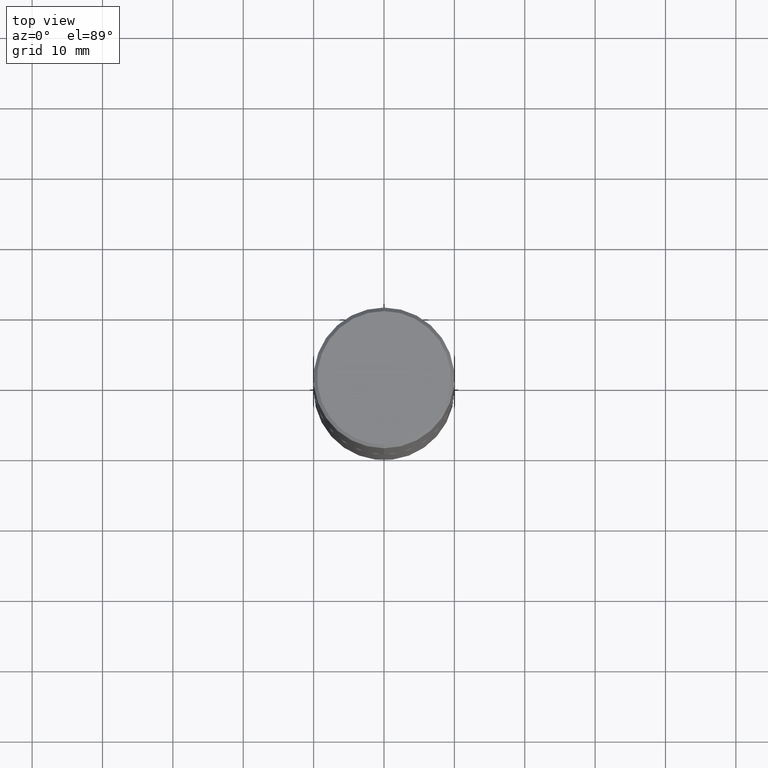
[diagram: clean part render]
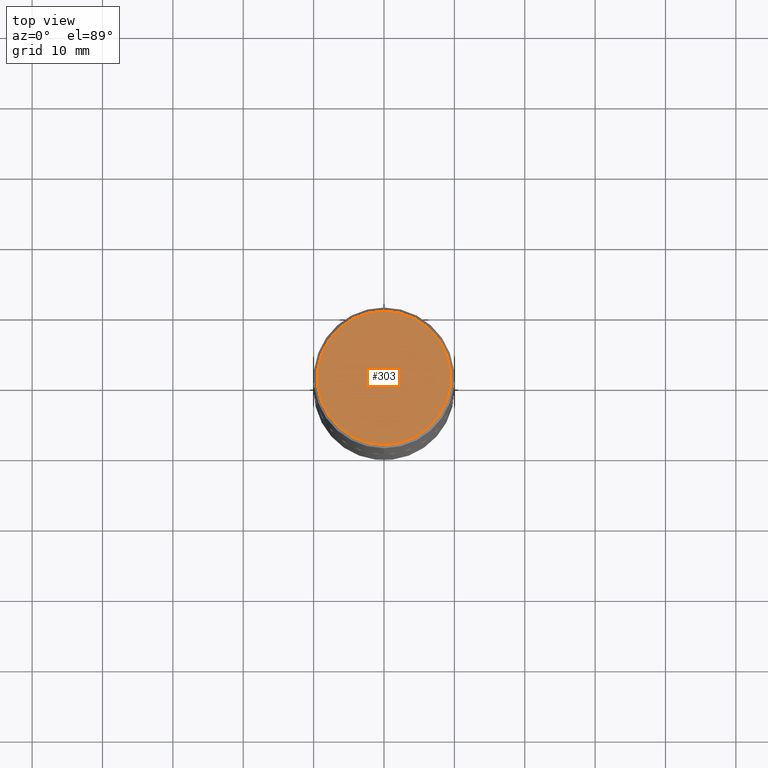
[diagram: same view with one face highlighted and labeled with its STEP entity id]
A machine part, top view. The second image highlights one B-rep face of the part: STEP entity #303.
In plain terms, the highlighted planar face has unit normal (0, -0, -1).
Its self-contained STEP definition (entity closure, byte-faithful):
#1 = ORIENTED_EDGE ( 'NONE', *, *, #263, .T. ) ;
#11 = AXIS2_PLACEMENT_3D ( 'NONE', #24, #377, #340 ) ;
#22 = DIRECTION ( 'NONE',  ( -2.447902336346030930E-29, 3.487996385144809755E-15, 1.000000000000000000 ) ) ;
#24 = CARTESIAN_POINT ( 'NONE',  ( 2.609533152651357803E-15, 0.3737000000000000322, -1.336129256402902755E-15 ) ) ;
#33 = AXIS2_PLACEMENT_3D ( 'NONE', #249, #22, #185 ) ;
#44 = AXIS2_PLACEMENT_3D ( 'NONE', #400, #177, #299 ) ;
#96 = EDGE_CURVE ( 'NONE', #355, #401, #369, .T. ) ;
#110 = CIRCLE ( 'NONE', #33, 0.3737000000000000322 ) ;
#127 = PLANE ( 'NONE',  #11 ) ;
#158 = CARTESIAN_POINT ( 'NONE',  ( 2.679362779428220707E-15, 0.3737000000000000322, -1.368794263677189641E-15 ) ) ;
#177 = DIRECTION ( 'NONE',  ( -2.447902336346030930E-29, 3.487996385144809755E-15, 1.000000000000000000 ) ) ;
#185 = DIRECTION ( 'NONE',  ( -6.982962677686265922E-15, -1.000000000000000000, 3.487996385144809755E-15 ) ) ;
#249 = CARTESIAN_POINT ( 'NONE',  ( 1.599214952469751148E-45, -2.278708545868848433E-31, -6.533001454857425165E-17 ) ) ;
#263 = EDGE_CURVE ( 'NONE', #401, #355, #110, .T. ) ;
#277 = FACE_OUTER_BOUND ( 'NONE', #371, .T. ) ;
#299 = DIRECTION ( 'NONE',  ( -6.982962677686265922E-15, -1.000000000000000000, 3.487996385144809755E-15 ) ) ;
#303 = ADVANCED_FACE ( 'NONE', ( #277 ), #127, .F. ) ;
#340 = DIRECTION ( 'NONE',  ( 6.982962677686265922E-15, 1.000000000000000000, -3.487996385144809360E-15 ) ) ;
#347 = CARTESIAN_POINT ( 'NONE',  ( -2.632373081744936315E-15, -0.3737000000000000322, 1.238134234580041113E-15 ) ) ;
#355 = VERTEX_POINT ( 'NONE', #347 ) ;
#369 = CIRCLE ( 'NONE', #44, 0.3737000000000000322 ) ;
#371 = EDGE_LOOP ( 'NONE', ( #1, #410 ) ) ;
#377 = DIRECTION ( 'NONE',  ( 2.447902336346030930E-29, -3.487996385144809360E-15, -1.000000000000000000 ) ) ;
#400 = CARTESIAN_POINT ( 'NONE',  ( 1.599214952469751148E-45, -2.278708545868848433E-31, -6.533001454857425165E-17 ) ) ;
#401 = VERTEX_POINT ( 'NONE', #158 ) ;
#410 = ORIENTED_EDGE ( 'NONE', *, *, #96, .T. ) ;